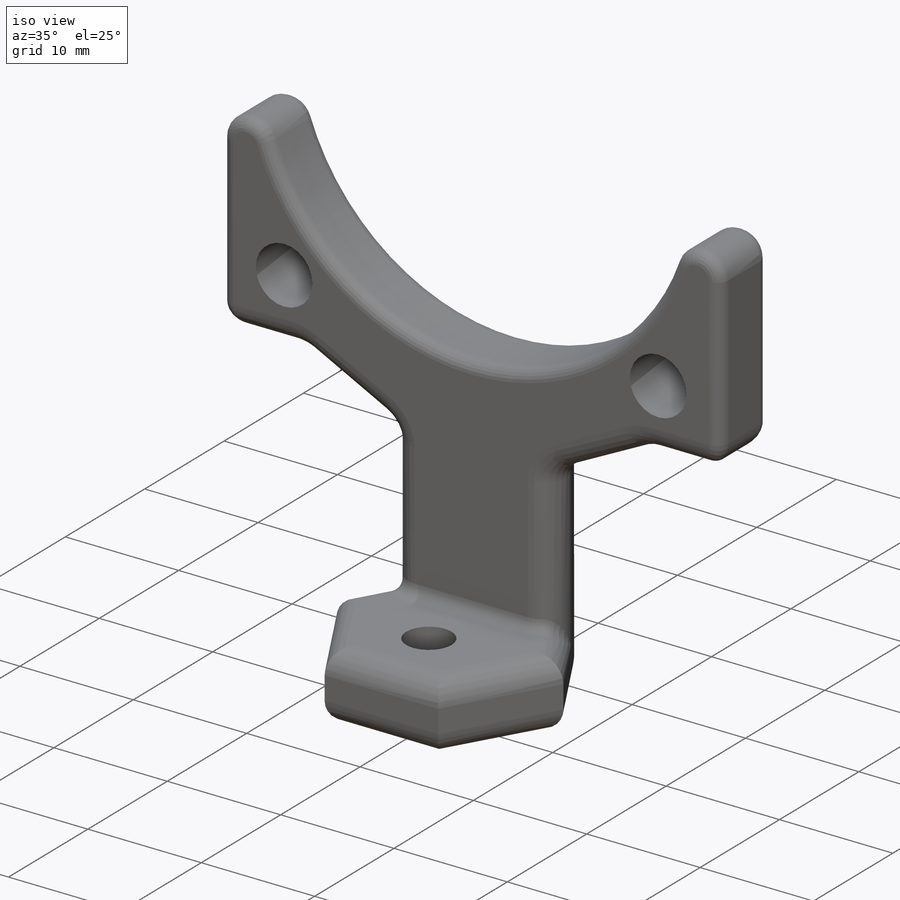
[diagram: iso view]
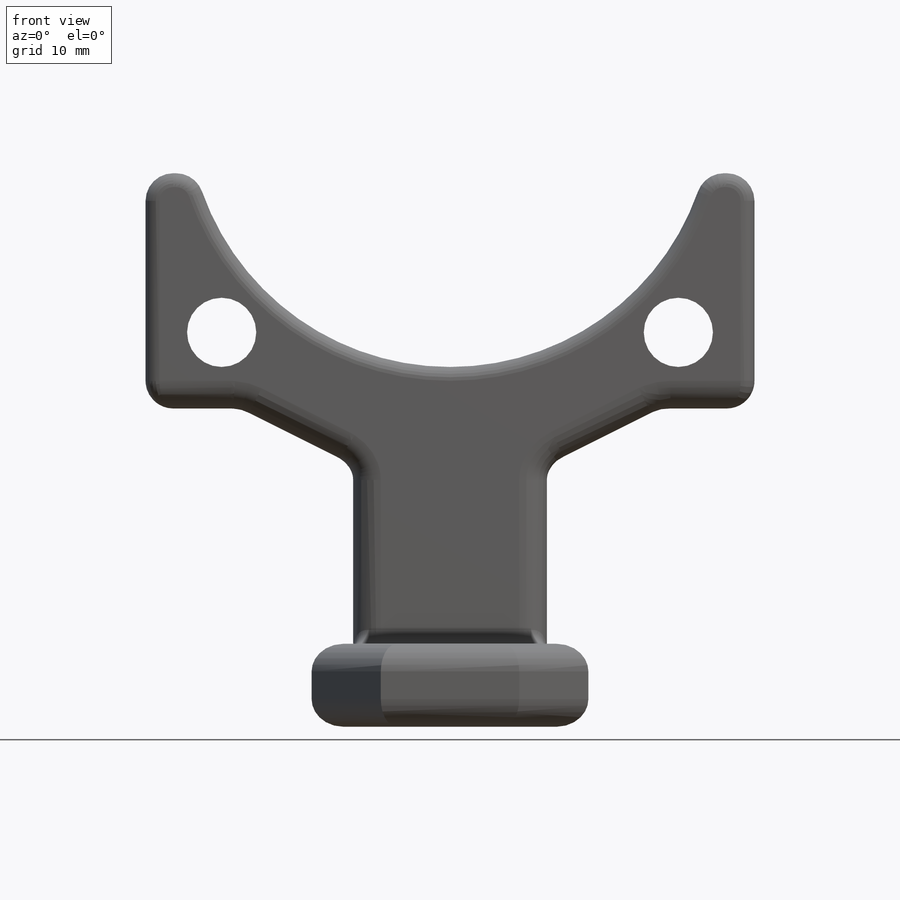
[diagram: front view]
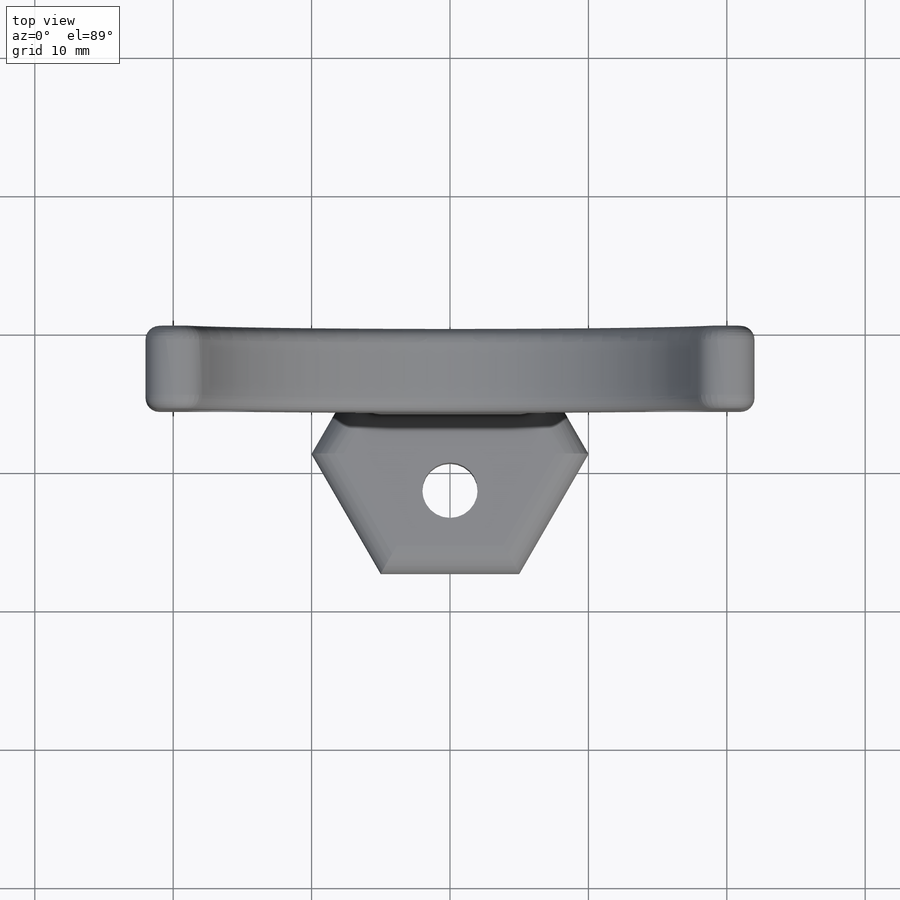
[diagram: top view]
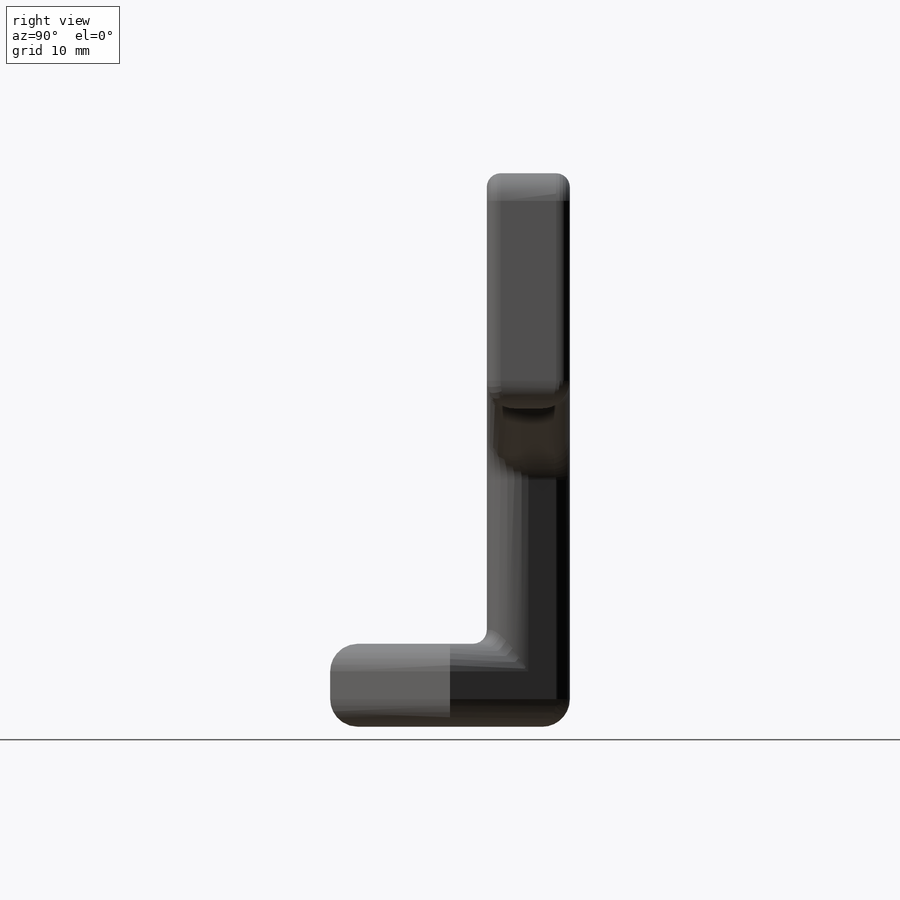
[diagram: right view]
SOLIDWORKS PART (.sldprt)
format: sldprt  version: not decoded by parser v0  size: 424,960 bytes
history: native  units: mm
features: sketch x7, extrude x4, cut_extrude x2, fillet x2, material x1, chamfer x1 (+11 scaffold rows collapsed)
feature tree (28):
  scaffold x11  (default folders/planes/origin — collapsed)
  material  "Material <not specified>"
  sketch  "Sketch1"  dims[c1.D2=38.0mm c1.D3=~4.169151mm c1.D4=5.0mm c1.D1=~98.653254mm c2.D2=~103.977398mm c2.D1=40.0mm c2.D3=33.0mm]
  sketch  "Sketch2"  dims[D1=15.0mm D2=2.0mm D3=2.0mm]
  extrude  "Boss-Extrude1"  Depth=6mm
  sketch  "Sketch3"  dims[c1.D1=~12.950678mm c1.D2=~6.420674mm c2.D1=~23.39799mm c2.D2=~21.058191mm c3.D1=~21.058191mm c4.D1=90.0deg c5.D1=~21.058191mm c6.D1=90.0deg c7.D1=10.0mm c7.D2=25.0mm]
  extrude  "Boss-Extrude2"  [1 undecoded]
  sketch  "Sketch4"  dims[D1=~6.351884mm]
  extrude  "Boss-Extrude3"  Depth=6mm
  sketch  "Sketch5"  dims[D1=6.0mm]
  extrude  "Boss-Extrude4"  [1 undecoded]
  sketch  "Sketch7"  dims[c1.D1=~5.643218mm c1.D2=4.0mm c2.D1=6.0mm]
  cut_extrude  "Cut-Extrude3"  [1 undecoded]
  sketch  "Sketch6"
  cut_extrude  "Cut-Extrude2"  [1 undecoded]
  chamfer  "Chamfer1"  Distance=4mm Angle=60deg
  fillet  "Fillet1"  Radius=2mm
  fillet  "Fillet2"  Radius=1mm
decode coverage: 11 of 16 modeling features carry decoded parameters
note: ~ marks probable driven/reference dimensions
note: 4 parameter values undecoded
summary: no parameter record found for 4 features
note: suppression state not decoded; provenance and decode notes live in map.json
